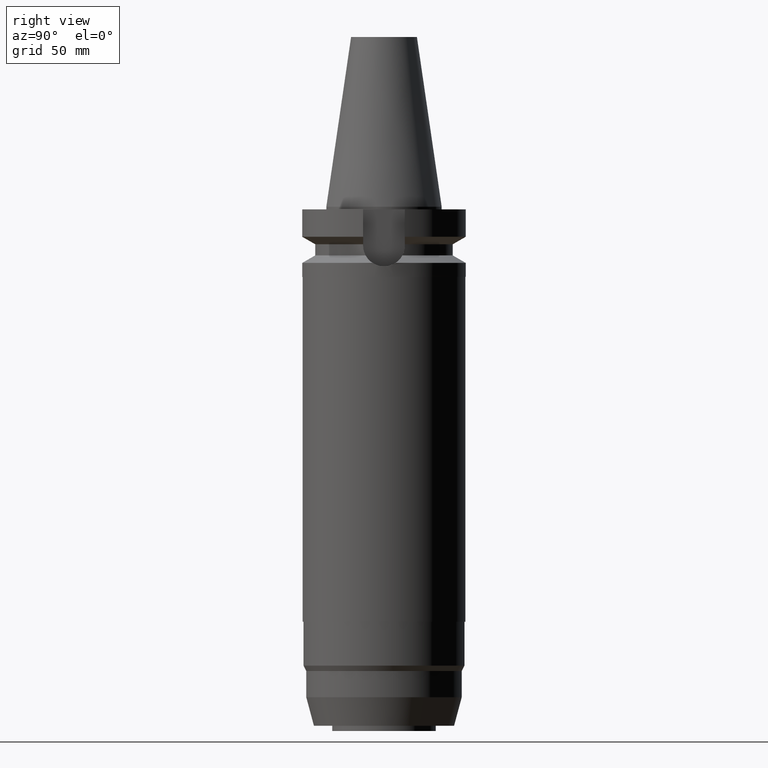
[diagram: clean part render]
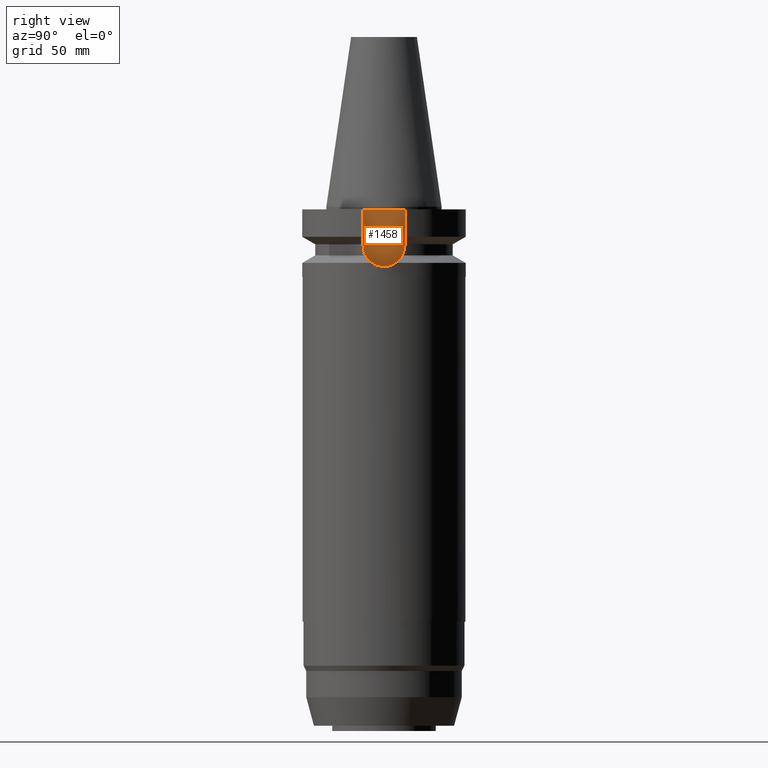
[diagram: same view with one face highlighted and labeled with its STEP entity id]
A machine part, right view. The second image highlights one B-rep face of the part: STEP entity #1458.
In plain terms, the highlighted planar face has unit normal (1, 0, 0).
Its self-contained STEP definition (entity closure, byte-faithful):
#124=DIRECTION('',(0.E0,-1.E0,0.E0));
#125=VECTOR('',#124,1.61E1);
#126=CARTESIAN_POINT('',(2.25E1,8.05E0,-1.E0));
#127=LINE('',#126,#125);
#307=DIRECTION('',(0.E0,0.E0,-1.E0));
#308=VECTOR('',#307,1.395E1);
#309=CARTESIAN_POINT('',(2.25E1,8.05E0,-1.E0));
#310=LINE('',#309,#308);
#314=CARTESIAN_POINT('',(2.25E1,0.E0,-1.495E1));
#315=DIRECTION('',(-1.E0,0.E0,0.E0));
#316=DIRECTION('',(0.E0,1.E0,0.E0));
#317=AXIS2_PLACEMENT_3D('',#314,#315,#316);
#322=CARTESIAN_POINT('',(2.25E1,0.E0,-1.495E1));
#323=DIRECTION('',(-1.E0,0.E0,0.E0));
#324=DIRECTION('',(0.E0,0.E0,-1.E0));
#325=AXIS2_PLACEMENT_3D('',#322,#323,#324);
#330=DIRECTION('',(0.E0,0.E0,1.E0));
#331=VECTOR('',#330,1.395E1);
#332=CARTESIAN_POINT('',(2.25E1,-8.05E0,-1.495E1));
#333=LINE('',#332,#331);
#1155=CARTESIAN_POINT('',(2.25E1,-8.05E0,-1.495E1));
#1156=VERTEX_POINT('',#1155);
#1157=CARTESIAN_POINT('',(2.25E1,0.E0,-2.3E1));
#1158=VERTEX_POINT('',#1157);
#1159=CARTESIAN_POINT('',(2.25E1,8.05E0,-1.495E1));
#1160=VERTEX_POINT('',#1159);
#1207=CARTESIAN_POINT('',(2.25E1,8.05E0,-1.E0));
#1208=VERTEX_POINT('',#1207);
#1209=CARTESIAN_POINT('',(2.25E1,-8.05E0,-1.E0));
#1210=VERTEX_POINT('',#1209);
#1443=CARTESIAN_POINT('',(2.25E1,0.E0,0.E0));
#1444=DIRECTION('',(1.E0,0.E0,0.E0));
#1445=DIRECTION('',(0.E0,0.E0,-1.E0));
#1446=AXIS2_PLACEMENT_3D('',#1443,#1444,#1445);
#1447=PLANE('',#1446);
#1448=ORIENTED_EDGE('',*,*,#1320,.F.);
#1450=ORIENTED_EDGE('',*,*,#1449,.T.);
#1452=ORIENTED_EDGE('',*,*,#1451,.T.);
#1454=ORIENTED_EDGE('',*,*,#1453,.T.);
#1455=ORIENTED_EDGE('',*,*,#1436,.T.);
#1456=EDGE_LOOP('',(#1448,#1450,#1452,#1454,#1455));
#1457=FACE_OUTER_BOUND('',#1456,.F.);
#318=CIRCLE('',#317,8.05E0);
#326=CIRCLE('',#325,8.05E0);
#1320=EDGE_CURVE('',#1208,#1210,#127,.T.);
#1436=EDGE_CURVE('',#1156,#1210,#333,.T.);
#1449=EDGE_CURVE('',#1208,#1160,#310,.T.);
#1451=EDGE_CURVE('',#1160,#1158,#318,.T.);
#1453=EDGE_CURVE('',#1158,#1156,#326,.T.);
#1458=ADVANCED_FACE('',(#1457),#1447,.T.);